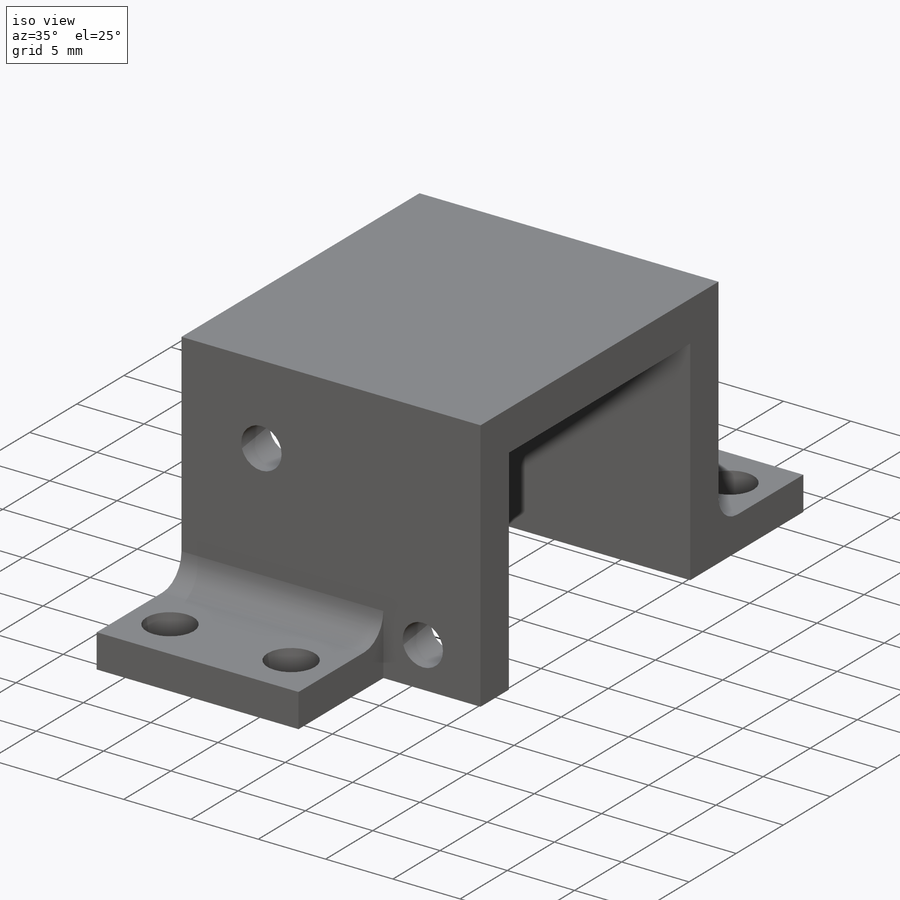
[diagram: iso view]
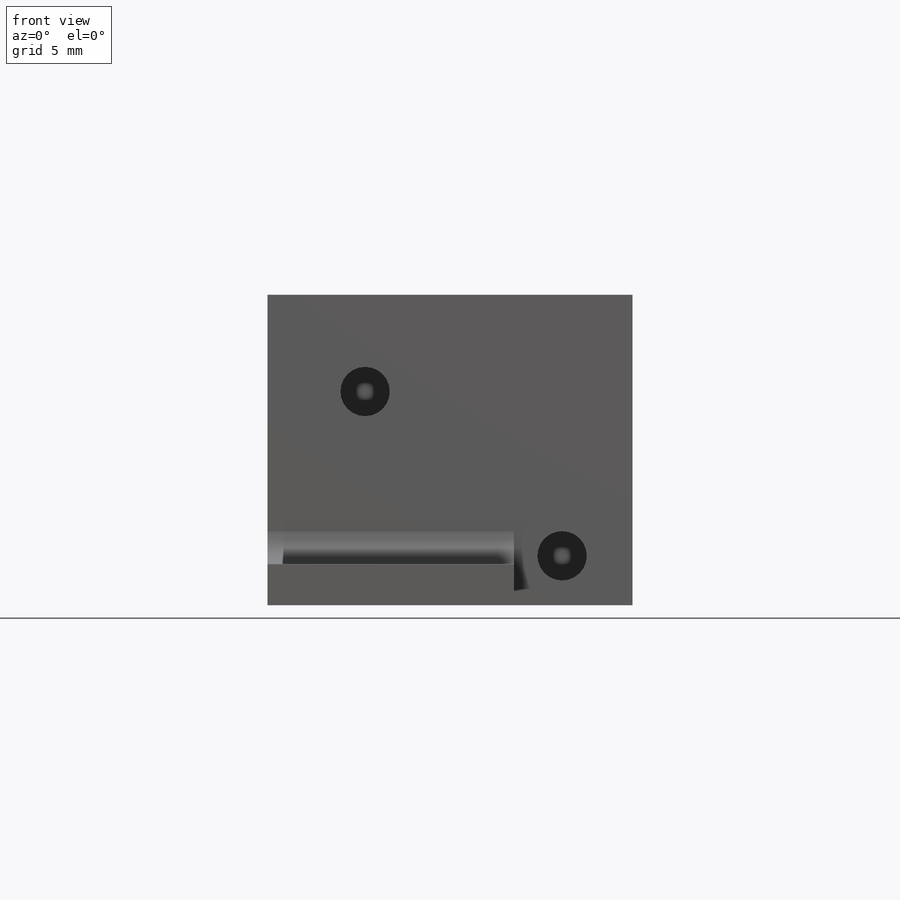
[diagram: front view]
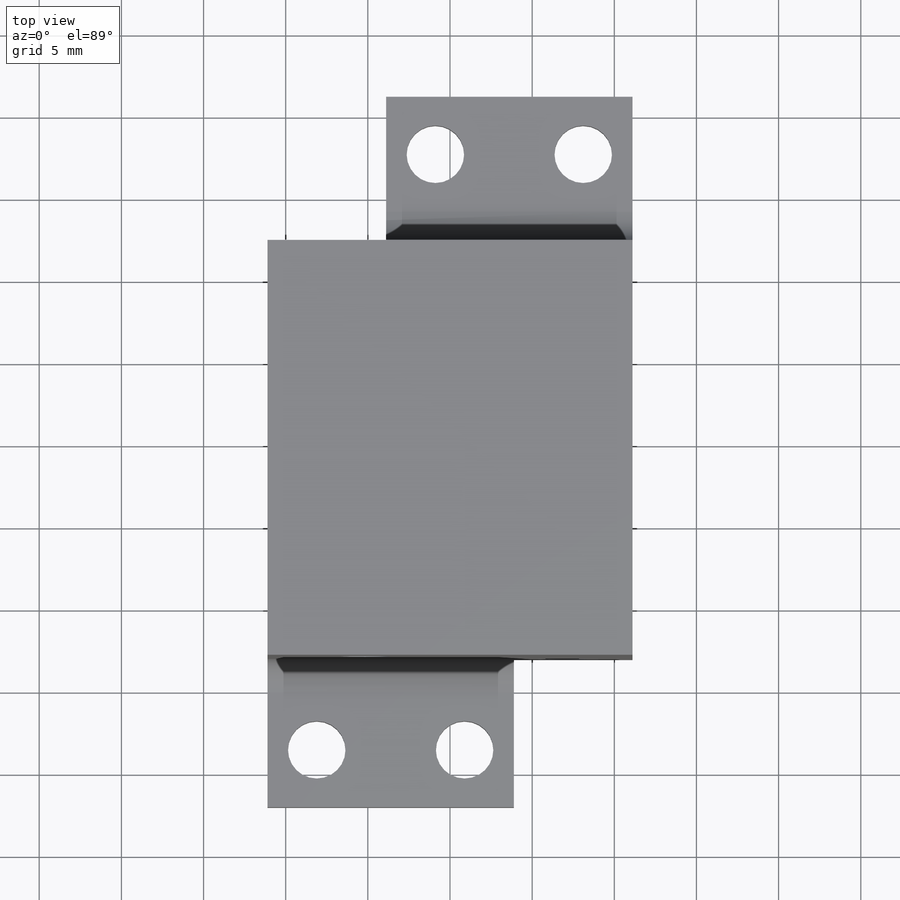
[diagram: top view]
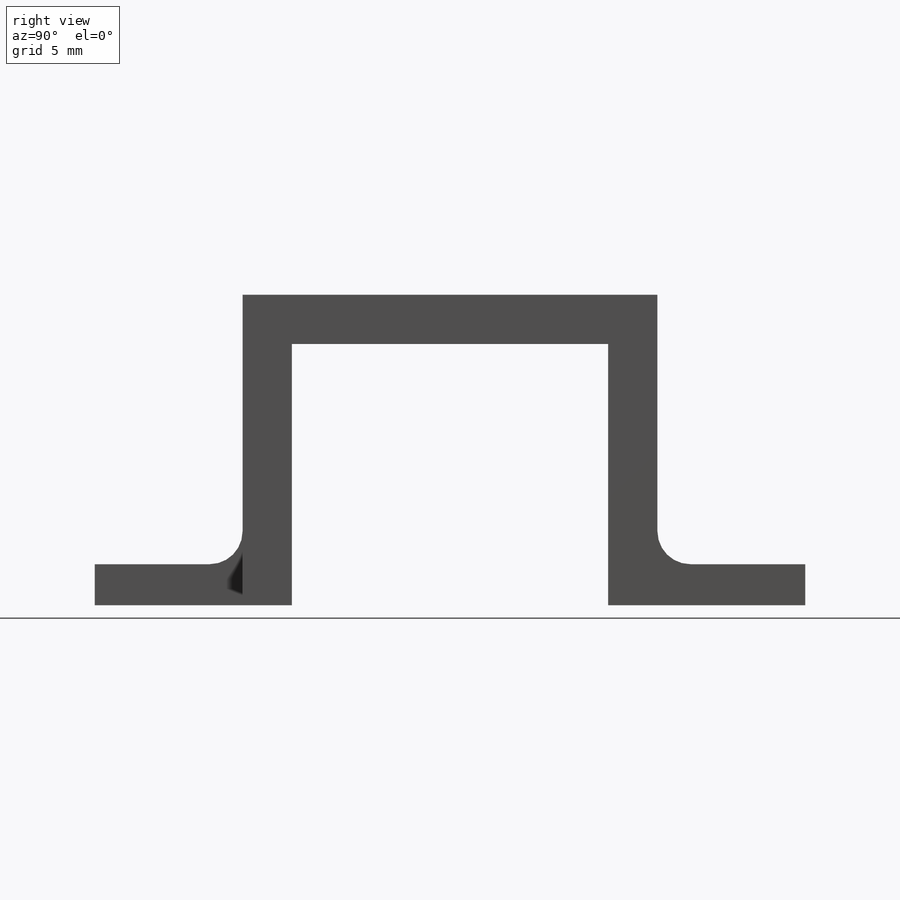
[diagram: right view]
SOLIDWORKS PART (.sldprt)
format: sldprt  version: not decoded by parser v0  size: 249,856 bytes
history: native  units: mm
features: sketch x5, extrude x4, material x1, fillet x1, cut_extrude x1, pattern_linear x1, move_body x1 (+12 scaffold rows collapsed)
feature tree (26):
  scaffold x12  (default folders/planes/origin — collapsed)
  material  "Material <not specified>"
  sketch  "Sketch1"  dims[c1.D3=3.0mm c1.D6=~1.958582mm c1.D8=3.0mm c1.D1=~114.566148mm c1.D2=130.6964mm c2.D1=22.22mm c2.D2=15.9mm c2.D4=5.94mm c2.D5=~2.406018mm c3.D4=2.9mm c3.D5=5.94mm c3.D6=4.29mm c3.D7=3.0mm]
  extrude  "Boss-Extrude1"  Depth=3mm
  sketch  "Sketch3"  dims[D1=2.5mm D2=9.0mm]
  extrude  "Boss-Extrude2"  Depth=15mm
  fillet  "Fillet2"  Radius=2mm
  sketch  "Sketch5"  dims[c1.D1=3.5mm c1.D2=3.5mm c2.D1=~3.183259mm c2.D2=3.0mm]
  cut_extrude  "Cut-Extrude1"  [1 undecoded]
  pattern_linear  "LPattern2"  Count1=2 Count2=1 Spacing1=6.95mm Spacing2=10mm
  move_body  "Body-Move/Copy3"
  sketch  "Sketch11"  dims[c1.D1=3.0mm c1.D2=~0.122607mm c2.D1=~3.082132mm c3.D1=~179.172225deg c4.D1=3.0mm c4.D2=~22.099975mm]
  extrude  "Boss-Extrude3"  [1 undecoded]
  sketch  "Sketch12"  dims[D1=3.0mm]
  extrude  "Boss-Extrude4"  [1 undecoded]
decode coverage: 9 of 13 modeling features carry decoded parameters
note: ~ marks probable driven/reference dimensions
note: 3 parameter values undecoded
summary: no parameter record found for 3 features
note: suppression state not decoded; provenance and decode notes live in map.json
